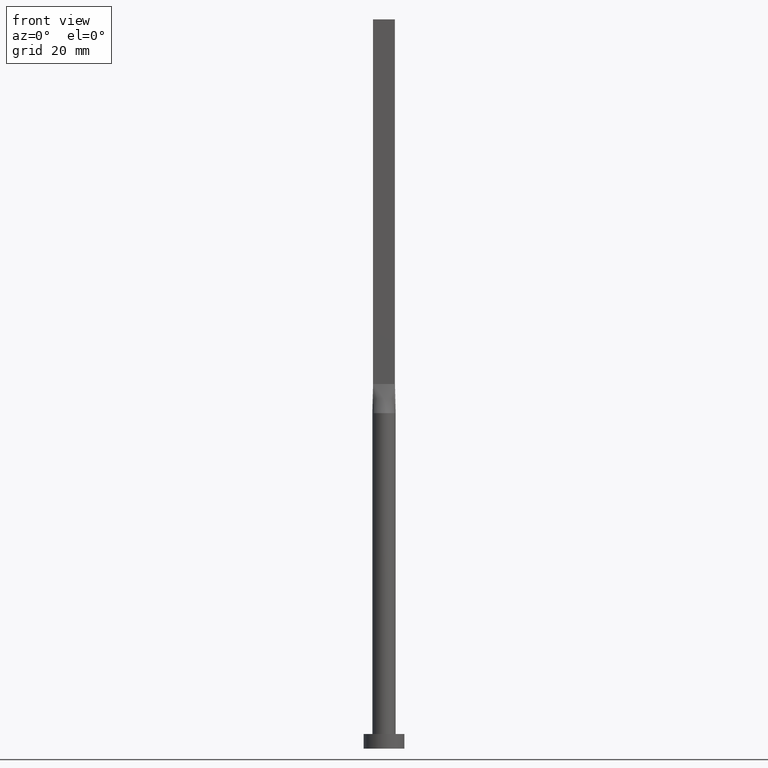
[diagram: clean part render]
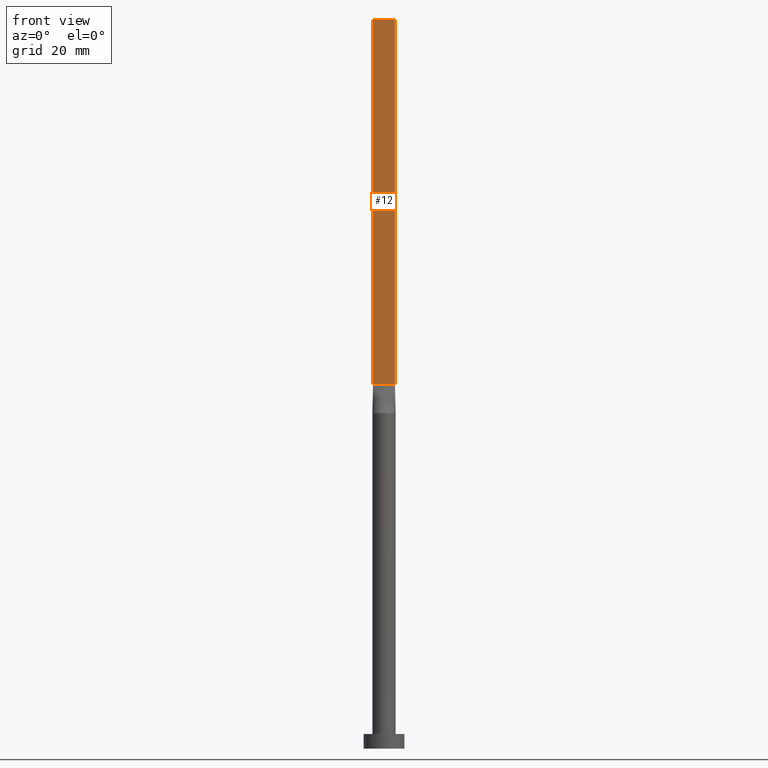
[diagram: same view with one face highlighted and labeled with its STEP entity id]
A machine part, front view. The second image highlights one B-rep face of the part: STEP entity #12.
In plain terms, the highlighted planar face has unit normal (0, 1, -0).
Its self-contained STEP definition (entity closure, byte-faithful):
#8 = VECTOR ( 'NONE', #413, 1000.000000000000000 ) ;
#12 = ADVANCED_FACE ( 'NONE', ( #232 ), #324, .F. ) ;
#16 = EDGE_CURVE ( 'NONE', #171, #32, #221, .T. ) ;
#32 = VERTEX_POINT ( 'NONE', #92 ) ;
#34 = ORIENTED_EDGE ( 'NONE', *, *, #311, .F. ) ;
#41 = VECTOR ( 'NONE', #318, 1000.000000000000000 ) ;
#73 = EDGE_LOOP ( 'NONE', ( #374, #34, #545, #228 ) ) ;
#88 = CARTESIAN_POINT ( 'NONE',  ( -3.750000000000000000, -0.5999999999999993117, 250.0000000000000000 ) ) ;
#92 = CARTESIAN_POINT ( 'NONE',  ( 3.750000000000000000, -0.5999999999999997558, 250.0000000000000000 ) ) ;
#97 = CARTESIAN_POINT ( 'NONE',  ( 3.750000000000000000, -0.5999999999999997558, 125.0000000000000000 ) ) ;
#134 = CARTESIAN_POINT ( 'NONE',  ( -3.750000000000000000, -0.5999999999999993117, 250.0000000000000000 ) ) ;
#148 = CARTESIAN_POINT ( 'NONE',  ( -3.750000000000000000, -0.5999999999999993117, 250.0000000000000000 ) ) ;
#152 = DIRECTION ( 'NONE',  ( -0.000000000000000000, -0.000000000000000000, -1.000000000000000000 ) ) ;
#153 = LINE ( 'NONE', #431, #323 ) ;
#171 = VERTEX_POINT ( 'NONE', #148 ) ;
#173 = VERTEX_POINT ( 'NONE', #388 ) ;
#191 = LINE ( 'NONE', #336, #332 ) ;
#198 = EDGE_CURVE ( 'NONE', #171, #173, #378, .T. ) ;
#221 = LINE ( 'NONE', #134, #41 ) ;
#228 = ORIENTED_EDGE ( 'NONE', *, *, #198, .T. ) ;
#232 = FACE_OUTER_BOUND ( 'NONE', #73, .T. ) ;
#234 = DIRECTION ( 'NONE',  ( -1.000000000000000000, 5.782411586589357392E-17, 0.000000000000000000 ) ) ;
#311 = EDGE_CURVE ( 'NONE', #32, #438, #191, .T. ) ;
#318 = DIRECTION ( 'NONE',  ( 1.000000000000000000, -5.782411586589357392E-17, 0.000000000000000000 ) ) ;
#323 = VECTOR ( 'NONE', #342, 1000.000000000000000 ) ;
#324 = PLANE ( 'NONE',  #500 ) ;
#332 = VECTOR ( 'NONE', #152, 1000.000000000000000 ) ;
#336 = CARTESIAN_POINT ( 'NONE',  ( 3.750000000000000000, -0.5999999999999997558, 250.0000000000000000 ) ) ;
#342 = DIRECTION ( 'NONE',  ( 1.000000000000000000, -5.782411586589357392E-17, 0.000000000000000000 ) ) ;
#374 = ORIENTED_EDGE ( 'NONE', *, *, #517, .T. ) ;
#378 = LINE ( 'NONE', #548, #8 ) ;
#388 = CARTESIAN_POINT ( 'NONE',  ( -3.750000000000000000, -0.5999999999999993117, 125.0000000000000000 ) ) ;
#413 = DIRECTION ( 'NONE',  ( -0.000000000000000000, -0.000000000000000000, -1.000000000000000000 ) ) ;
#431 = CARTESIAN_POINT ( 'NONE',  ( -3.750000000000000000, -0.5999999999999993117, 125.0000000000000000 ) ) ;
#438 = VERTEX_POINT ( 'NONE', #97 ) ;
#465 = DIRECTION ( 'NONE',  ( 5.782411586589357392E-17, 1.000000000000000000, -0.000000000000000000 ) ) ;
#500 = AXIS2_PLACEMENT_3D ( 'NONE', #88, #465, #234 ) ;
#517 = EDGE_CURVE ( 'NONE', #173, #438, #153, .T. ) ;
#545 = ORIENTED_EDGE ( 'NONE', *, *, #16, .F. ) ;
#548 = CARTESIAN_POINT ( 'NONE',  ( -3.750000000000000000, -0.5999999999999993117, 250.0000000000000000 ) ) ;